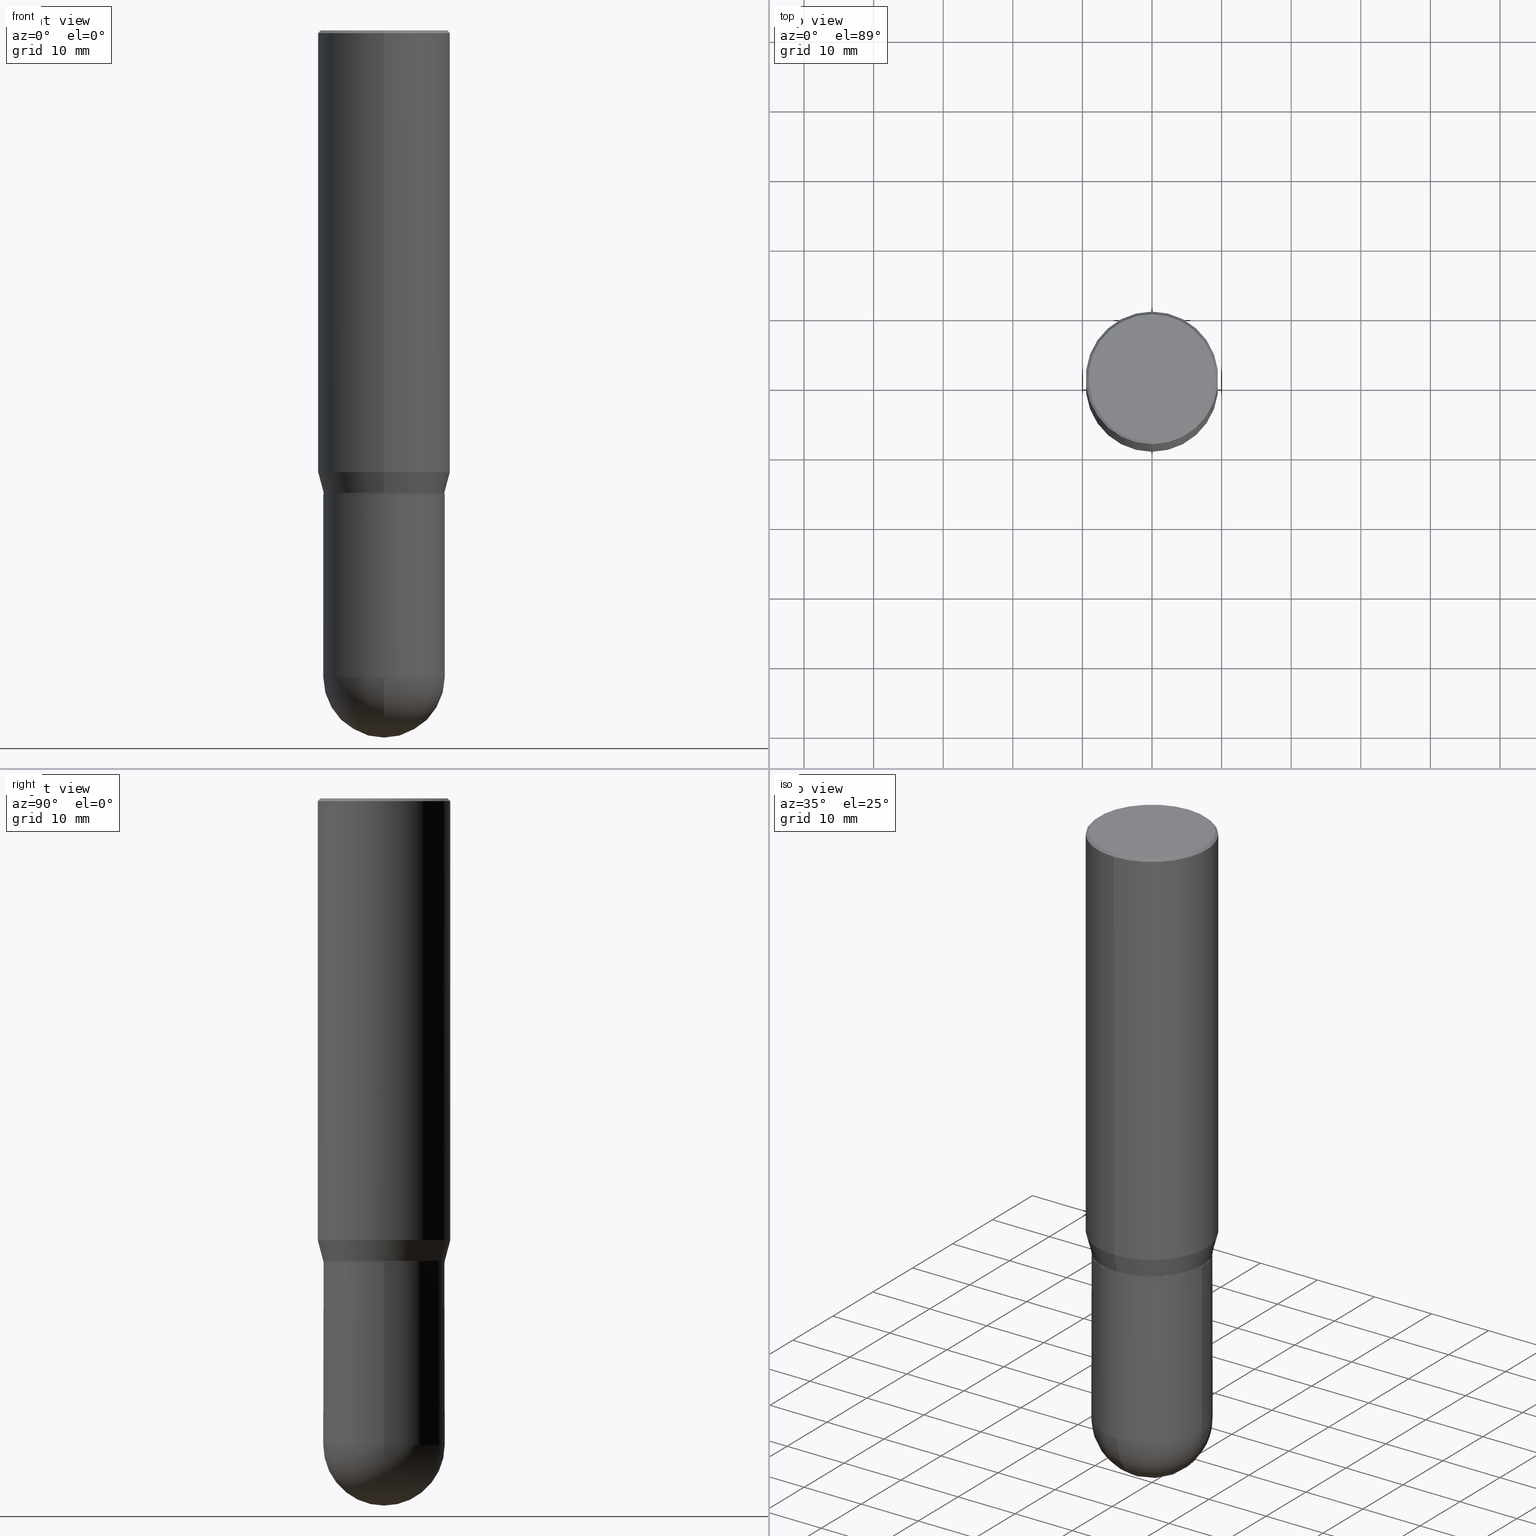
[diagram: canonical four-view strip — front | top / right | iso, engineering-drawing reading convention]
A machine part, canonical four-view strip (front | top / right | iso — engineering-drawing reading convention). The complete STEP part file that produces these views, byte-faithful:
ISO-10303-21;
HEADER;
FILE_DESCRIPTION (( 'STEP AP203' ),
    '1' );
FILE_NAME ('39170.STEP',
    '2024-03-08T12:46:50',
    ( '' ),
    ( '' ),
    'SwSTEP 2.0',
    'SolidWorks 2023',
    '' );
FILE_SCHEMA (( 'CONFIG_CONTROL_DESIGN' ));
ENDSEC;

DATA;
#1 = APPROVAL_ROLE ( '' ) ;
#2 = DIRECTION ( 'NONE',  ( -2.447249651675141421E-29, 3.488931066742028009E-15, 1.000000000000000000 ) ) ;
#3 = VERTEX_POINT ( 'NONE', #365 ) ;
#4 = MECHANICAL_CONTEXT ( 'NONE', #94, 'mechanical' ) ;
#5 = CONICAL_SURFACE ( 'NONE', #431, 0.3437500000000002776, 0.2617993877991510177 ) ;
#6 = CYLINDRICAL_SURFACE ( 'NONE', #101, 0.3437500000000001110 ) ;
#7 = ORIENTED_EDGE ( 'NONE', *, *, #454, .T. ) ;
#8 = DIRECTION ( 'NONE',  ( 0.000000000000000000, 0.000000000000000000, 1.000000000000000000 ) ) ;
#9 = ORIENTED_EDGE ( 'NONE', *, *, #18, .T. ) ;
#10 = COORDINATED_UNIVERSAL_TIME_OFFSET ( 5, 0, .BEHIND. ) ;
#11 = DIRECTION ( 'NONE',  ( 2.447249651675140861E-29, -3.488931066742028403E-15, -1.000000000000000000 ) ) ;
#12 = DATE_AND_TIME ( #370, #281 ) ;
#13 = DIRECTION ( 'NONE',  ( -6.982962677686265133E-15, -1.000000000000000000, 3.183508222769715349E-15 ) ) ;
#14 = CC_DESIGN_APPROVAL ( #89, ( #285 ) ) ;
#15 = CALENDAR_DATE ( 2024, 8, 3 ) ;
#16 = EDGE_LOOP ( 'NONE', ( #242, #479, #269, #35 ) ) ;
#17 = SPHERICAL_SURFACE ( 'NONE', #201, 0.3437500000000002776 ) ;
#18 = EDGE_CURVE ( 'NONE', #317, #395, #463, .T. ) ;
#19 = DIRECTION ( 'NONE',  ( 1.000000000000000000, -6.982962677686266711E-15, 0.000000000000000000 ) ) ;
#20 = CIRCLE ( 'NONE', #46, 0.3437500000000001110 ) ;
#21 = APPROVAL ( #90, 'UNSPECIFIED' ) ;
#22 = CIRCLE ( 'NONE', #149, 0.3437500000000002776 ) ;
#23 = CARTESIAN_POINT ( 'NONE',  ( 6.422806710821410064E-29, -9.156699584664454018E-15, -2.624500000000000277 ) ) ;
#24 = CARTESIAN_POINT ( 'NONE',  ( 2.553512956637922757E-15, 0.3437499999999911182, -2.615000000000001545 ) ) ;
#25 = ORIENTED_EDGE ( 'NONE', *, *, #427, .T. ) ;
#26 = CARTESIAN_POINT ( 'NONE',  ( 0.3437500000000001665, -1.336582700025891149E-14, -3.656250000000000000 ) ) ;
#27 = ADVANCED_FACE ( 'NONE', ( #227 ), #420, .T. ) ;
#28 = CIRCLE ( 'NONE', #423, 0.3437500000000001665 ) ;
#29 = MANIFOLD_SOLID_BREP ( 'Body-Move/Copy2[2]', #77 ) ;
#30 = FACE_OUTER_BOUND ( 'NONE', #208, .T. ) ;
#31 = CARTESIAN_POINT ( 'NONE',  ( 6.399557839130496285E-29, -9.123554739530404168E-15, -2.615000000000000213 ) ) ;
#32 = LINE ( 'NONE', #112, #267 ) ;
#33 = MANIFOLD_SOLID_BREP ( 'Body-Move/Copy2[1]', #136 ) ;
#34 = CARTESIAN_POINT ( 'NONE',  ( 0.000000000000000000, 0.000000000000000000, 0.000000000000000000 ) ) ;
#35 = ORIENTED_EDGE ( 'NONE', *, *, #347, .F. ) ;
#36 = CC_DESIGN_DATE_AND_TIME_ASSIGNMENT ( #85, #293, ( #183 ) ) ;
#37 = DIRECTION ( 'NONE',  ( -2.447249651675140861E-29, 3.488931066742028403E-15, 1.000000000000000000 ) ) ;
#38 = VERTEX_POINT ( 'NONE', #349 ) ;
#39 = CARTESIAN_POINT ( 'NONE',  ( -2.521233014181036950E-15, -0.3599999999999999867, 9.089902455763289193E-16 ) ) ;
#40 = ORIENTED_EDGE ( 'NONE', *, *, #336, .F. ) ;
#41 = DIRECTION ( 'NONE',  ( 1.000000000000000000, -6.982962677686265922E-15, 0.000000000000000000 ) ) ;
#42 = EDGE_CURVE ( 'NONE', #350, #55, #475, .T. ) ;
#43 = FACE_OUTER_BOUND ( 'NONE', #401, .T. ) ;
#44 = ORIENTED_EDGE ( 'NONE', *, *, #341, .T. ) ;
#45 = CARTESIAN_POINT ( 'NONE',  ( 6.399557839130496285E-29, -9.123554739530404168E-15, -2.615000000000000213 ) ) ;
#46 = AXIS2_PLACEMENT_3D ( 'NONE', #92, #254, #19 ) ;
#47 = EDGE_LOOP ( 'NONE', ( #353, #166 ) ) ;
#48 = SPHERICAL_SURFACE ( 'NONE', #343, 0.3437500000000002776 ) ;
#49 = ORIENTED_EDGE ( 'NONE', *, *, #375, .F. ) ;
#50 = DIRECTION ( 'NONE',  ( -2.447249651675141421E-29, 3.488931066742028009E-15, 1.000000000000000000 ) ) ;
#51 = DIRECTION ( 'NONE',  ( -2.447249651675141421E-29, 3.488931066742028009E-15, 1.000000000000000000 ) ) ;
#52 = AXIS2_PLACEMENT_3D ( 'NONE', #316, #397, #465 ) ;
#53 = LOCAL_TIME ( 7, 46, 50.00000000000000000, #333 ) ;
#54 = DIRECTION ( 'NONE',  ( -2.447249651675141421E-29, 3.488931066742028009E-15, 1.000000000000000000 ) ) ;
#55 = VERTEX_POINT ( 'NONE', #275 ) ;
#56 = DIRECTION ( 'NONE',  ( -1.000000000000000000, 6.982962677686265922E-15, -4.883557194083112340E-29 ) ) ;
#57 = CC_DESIGN_PERSON_AND_ORGANIZATION_ASSIGNMENT ( #438, #351, ( #419 ) ) ;
#58 = DIRECTION ( 'NONE',  ( -2.447249651675141421E-29, 3.488931066742028009E-15, 1.000000000000000000 ) ) ;
#59 = ADVANCED_FACE ( 'NONE', ( #114 ), #384, .F. ) ;
#60 = PRODUCT_DEFINITION_FORMATION_WITH_SPECIFIED_SOURCE ( 'ANY', '', #419, .NOT_KNOWN. ) ;
#61 = DIRECTION ( 'NONE',  ( -6.982962677686265922E-15, -1.000000000000000000, 3.178877665354776508E-15 ) ) ;
#62 = DIRECTION ( 'NONE',  ( -2.447249651675141421E-29, 3.488931066742028403E-15, 1.000000000000000000 ) ) ;
#63 = VERTEX_POINT ( 'NONE', #352 ) ;
#64 = DIRECTION ( 'NONE',  ( -2.447249651675141421E-29, 3.488931066742028009E-15, 1.000000000000000000 ) ) ;
#65 = CIRCLE ( 'NONE', #290, 0.3432500000000001661 ) ;
#66 = CARTESIAN_POINT ( 'NONE',  ( 8.941245322614405682E-29, -1.276572864514525169E-14, -3.656250000000000000 ) ) ;
#67 = EDGE_CURVE ( 'NONE', #391, #317, #32, .T. ) ;
#68 = CARTESIAN_POINT ( 'NONE',  ( -2.396901939115747671E-15, -0.3432500000000093254, -2.624999999999999556 ) ) ;
#69 = ORIENTED_EDGE ( 'NONE', *, *, #460, .F. ) ;
#70 = APPLICATION_PROTOCOL_DEFINITION ( 'international standard', 'config_control_design', 1994, #94 ) ;
#71 = EDGE_CURVE ( 'NONE', #282, #123, #301, .T. ) ;
#72 = DIRECTION ( 'NONE',  ( -2.447249651675141421E-29, 3.488931066742028403E-15, 1.000000000000000000 ) ) ;
#73 = VERTEX_POINT ( 'NONE', #68 ) ;
#74 = DATE_AND_TIME ( #113, #211 ) ;
#75 = DIRECTION ( 'NONE',  ( 1.000000000000000000, -6.982962677686265922E-15, 0.000000000000000000 ) ) ;
#76 = ORIENTED_EDGE ( 'NONE', *, *, #439, .T. ) ;
#77 = CLOSED_SHELL ( 'NONE', ( #117, #274, #262, #100, #403, #193, #415, #304, #248, #59, #27, #111 ) ) ;
#78 = AXIS2_PLACEMENT_3D ( 'NONE', #146, #64, #374 ) ;
#79 = CARTESIAN_POINT ( 'NONE',  ( -2.572686749164323547E-15, -0.3750000000000001110, -0.01499999999999903667 ) ) ;
#80 = ORIENTED_EDGE ( 'NONE', *, *, #392, .F. ) ;
#81 = DIRECTION ( 'NONE',  ( -6.982962677686265133E-15, -1.000000000000000000, 3.183508222769715349E-15 ) ) ;
#82 = ORIENTED_EDGE ( 'NONE', *, *, #223, .F. ) ;
#83 = DATE_AND_TIME ( #124, #471 ) ;
#84 = VERTEX_POINT ( 'NONE', #39 ) ;
#85 = DATE_AND_TIME ( #15, #53 ) ;
#86 = CIRCLE ( 'NONE', #202, 0.3750000000000000555 ) ;
#87 = ORIENTED_EDGE ( 'NONE', *, *, #454, .F. ) ;
#88 = CARTESIAN_POINT ( 'NONE',  ( 2.618611004132350411E-15, 0.3749999999999999445, -0.01500000000000165437 ) ) ;
#89 = APPROVAL ( #322, 'UNSPECIFIED' ) ;
#90 = APPROVAL_STATUS ( 'not_yet_approved' ) ;
#91 = DIRECTION ( 'NONE',  ( -2.445468806185136597E-29, 3.491481338843145583E-15, 1.000000000000000000 ) ) ;
#92 = CARTESIAN_POINT ( 'NONE',  ( 6.419355616235984688E-29, -9.165138514463258190E-15, -2.625000000000000444 ) ) ;
#93 = AXIS2_PLACEMENT_3D ( 'NONE', #414, #300, #411 ) ;
#94 = APPLICATION_CONTEXT ( 'configuration controlled 3d designs of mechanical parts and assemblies' ) ;
#95 = ORIENTED_EDGE ( 'NONE', *, *, #135, .T. ) ;
#96 = DIRECTION ( 'NONE',  ( -2.447249651675141421E-29, 3.488931066742028403E-15, 1.000000000000000000 ) ) ;
#97 = CARTESIAN_POINT ( 'NONE',  ( 2.566238784049702937E-15, 0.3599999999999999867, -1.603040122477931310E-15 ) ) ;
#98 = CARTESIAN_POINT ( 'NONE',  ( 2.664535259100437228E-15, 0.3749999999999998890, -0.01500000000000165437 ) ) ;
#99 = AXIS2_PLACEMENT_3D ( 'NONE', #405, #372, #492 ) ;
#100 = ADVANCED_FACE ( 'NONE', ( #358 ), #195, .T. ) ;
#101 = AXIS2_PLACEMENT_3D ( 'NONE', #319, #433, #323 ) ;
#102 = CIRCLE ( 'NONE', #142, 0.3437500000000001665 ) ;
#103 = CARTESIAN_POINT ( 'NONE',  ( 0.000000000000000000, 0.000000000000000000, 0.000000000000000000 ) ) ;
#104 = EDGE_LOOP ( 'NONE', ( #127, #44, #25, #371 ) ) ;
#105 = PERSON ( 'UNSPECIFIED', 'UNSPECIFIED', 'UNSPECIFIED', ('UNSPECIFIED'), ('UNSPECIFIED'), ('UNSPECIFIED') ) ;
#106 = CARTESIAN_POINT ( 'NONE',  ( -2.396901939115747671E-15, -0.3432500000000093254, -2.624999999999999556 ) ) ;
#107 = DIRECTION ( 'NONE',  ( -6.982962677686265922E-15, -1.000000000000000000, 3.488797541908735597E-15 ) ) ;
#108 = EDGE_LOOP ( 'NONE', ( #469, #153, #175, #87 ) ) ;
#109 = APPROVAL_PERSON_ORGANIZATION ( #252, #21, #247 ) ;
#110 = CARTESIAN_POINT ( 'NONE',  ( 0.000000000000000000, 0.000000000000000000, 0.000000000000000000 ) ) ;
#111 = ADVANCED_FACE ( 'NONE', ( #199 ), #394, .T. ) ;
#112 = CARTESIAN_POINT ( 'NONE',  ( 2.438937940496608571E-15, 0.3432499999999910067, -2.625000000000001776 ) ) ;
#113 = CALENDAR_DATE ( 2024, 8, 3 ) ;
#114 = FACE_OUTER_BOUND ( 'NONE', #47, .T. ) ;
#115 = ORIENTED_EDGE ( 'NONE', *, *, #298, .T. ) ;
#116 = DIRECTION ( 'NONE',  ( -6.982962677686265922E-15, -1.000000000000000000, 3.488931066742028403E-15 ) ) ;
#117 = ADVANCED_FACE ( 'NONE', ( #190 ), #158, .T. ) ;
#118 = ORIENTED_EDGE ( 'NONE', *, *, #347, .T. ) ;
#119 = AXIS2_PLACEMENT_3D ( 'NONE', #133, #138, #452 ) ;
#120 = CC_DESIGN_APPROVAL ( #21, ( #183 ) ) ;
#121 = PERSON_AND_ORGANIZATION ( #105, #368 ) ;
#122 = CARTESIAN_POINT ( 'NONE',  ( 6.114143462916222679E-29, -8.716652614368324829E-15, -2.498373412263474425 ) ) ;
#123 = VERTEX_POINT ( 'NONE', #147 ) ;
#124 = CALENDAR_DATE ( 2024, 8, 3 ) ;
#125 = CARTESIAN_POINT ( 'NONE',  ( 6.424030335647246511E-29, -9.158444050197824066E-15, -2.625000000000000444 ) ) ;
#126 = ORIENTED_EDGE ( 'NONE', *, *, #482, .T. ) ;
#127 = ORIENTED_EDGE ( 'NONE', *, *, #67, .F. ) ;
#128 = AXIS2_PLACEMENT_3D ( 'NONE', #448, #51, #402 ) ;
#129 = CC_DESIGN_PERSON_AND_ORGANIZATION_ASSIGNMENT ( #478, #447, ( #183 ) ) ;
#130 = DIRECTION ( 'NONE',  ( -2.447249651675141421E-29, 3.488931066742028009E-15, 1.000000000000000000 ) ) ;
#131 = CIRCLE ( 'NONE', #225, 0.3437500000000003331 ) ;
#132 = SECURITY_CLASSIFICATION_LEVEL ( 'unclassified' ) ;
#133 = CARTESIAN_POINT ( 'NONE',  ( 8.941245322614405682E-29, -1.276572864514525169E-14, -3.656250000000000000 ) ) ;
#134 = CARTESIAN_POINT ( 'NONE',  ( 6.424030335647246511E-29, -9.158444050197824066E-15, -2.625000000000000444 ) ) ;
#135 = EDGE_CURVE ( 'NONE', #282, #314, #373, .T. ) ;
#136 = CLOSED_SHELL ( 'NONE', ( #422, #219, #171, #259, #167 ) ) ;
#137 = AXIS2_PLACEMENT_3D ( 'NONE', #461, #185, #107 ) ;
#138 = DIRECTION ( 'NONE',  ( -2.445468806185136597E-29, 3.491481338843145583E-15, 1.000000000000000000 ) ) ;
#139 = CARTESIAN_POINT ( 'NONE',  ( -0.3437500000000001110, -8.522942925628910551E-15, -2.625000000000000444 ) ) ;
#140 = CARTESIAN_POINT ( 'NONE',  ( 3.670874477512797068E-31, -5.233396600113162734E-17, -0.01500000000000034639 ) ) ;
#141 = CC_DESIGN_PERSON_AND_ORGANIZATION_ASSIGNMENT ( #154, #315, ( #60 ) ) ;
#142 = AXIS2_PLACEMENT_3D ( 'NONE', #270, #189, #41 ) ;
#143 = DIRECTION ( 'NONE',  ( -2.447249651675141421E-29, 3.488931066742028009E-15, 1.000000000000000000 ) ) ;
#144 = LINE ( 'NONE', #462, #361 ) ;
#145 = EDGE_CURVE ( 'NONE', #3, #38, #496, .T. ) ;
#146 = CARTESIAN_POINT ( 'NONE',  ( 8.492566597463105327E-45, -1.210746088695240353E-30, -3.470249384508011462E-16 ) ) ;
#147 = CARTESIAN_POINT ( 'NONE',  ( 2.400393420454744901E-15, 0.3437499999999875100, -3.656250000000001332 ) ) ;
#148 = ORIENTED_EDGE ( 'NONE', *, *, #493, .F. ) ;
#149 = AXIS2_PLACEMENT_3D ( 'NONE', #260, #181, #61 ) ;
#150 = COORDINATED_UNIVERSAL_TIME_OFFSET ( 5, 0, .BEHIND. ) ;
#151 = EDGE_CURVE ( 'NONE', #314, #385, #261, .T. ) ;
#152 = CARTESIAN_POINT ( 'NONE',  ( 0.000000000000000000, 0.000000000000000000, 0.000000000000000000 ) ) ;
#153 = ORIENTED_EDGE ( 'NONE', *, *, #216, .T. ) ;
#154 = PERSON_AND_ORGANIZATION ( #105, #368 ) ;
#155 = CARTESIAN_POINT ( 'NONE',  ( 0.000000000000000000, 0.000000000000000000, 0.000000000000000000 ) ) ;
#156 = EDGE_LOOP ( 'NONE', ( #359, #76, #214, #69 ) ) ;
#157 = COORDINATED_UNIVERSAL_TIME_OFFSET ( 5, 0, .BEHIND. ) ;
#158 = CYLINDRICAL_SURFACE ( 'NONE', #182, 0.3437500000000002776 ) ;
#159 = EDGE_LOOP ( 'NONE', ( #473, #191, #49, #512 ) ) ;
#160 = AXIS2_PLACEMENT_3D ( 'NONE', #122, #468, #360 ) ;
#161 = AXIS2_PLACEMENT_3D ( 'NONE', #308, #379, #376 ) ;
#162 = CALENDAR_DATE ( 2024, 8, 3 ) ;
#163 = DIRECTION ( 'NONE',  ( 5.024295867788060812E-15, 0.7071067811865499042, 0.7071067811865450192 ) ) ;
#164 = EDGE_LOOP ( 'NONE', ( #430, #95, #326, #40 ) ) ;
#165 = PERSON_AND_ORGANIZATION_ROLE ( 'creator' ) ;
#166 = ORIENTED_EDGE ( 'NONE', *, *, #341, .F. ) ;
#167 = ADVANCED_FACE ( 'NONE', ( #43 ), #6, .T. ) ;
#168 = CARTESIAN_POINT ( 'NONE',  ( -0.3437500000000001665, -8.522942925628910551E-15, -3.656250000000000000 ) ) ;
#169 = AXIS2_PLACEMENT_3D ( 'NONE', #103, #344, #348 ) ;
#170 = DIRECTION ( 'NONE',  ( -6.982962677686265133E-15, -1.000000000000000000, 3.183508222769715349E-15 ) ) ;
#171 = ADVANCED_FACE ( 'NONE', ( #503 ), #283, .F. ) ;
#172 = AXIS2_PLACEMENT_3D ( 'NONE', #302, #180, #263 ) ;
#173 = DIRECTION ( 'NONE',  ( -6.982962677686265922E-15, -1.000000000000000000, 3.178877665354776508E-15 ) ) ;
#174 = PRODUCT_RELATED_PRODUCT_CATEGORY ( 'detail', '', ( #419 ) ) ;
#175 = ORIENTED_EDGE ( 'NONE', *, *, #446, .T. ) ;
#176 = LINE ( 'NONE', #444, #309 ) ;
#177 = DIRECTION ( 'NONE',  ( -1.000000000000000000, 6.982962677686265922E-15, -4.883557194083112340E-29 ) ) ;
#178 = CARTESIAN_POINT ( 'NONE',  ( -2.400393420454592651E-15, -0.3437500000000096034, -2.624499999999999389 ) ) ;
#179 = EDGE_CURVE ( 'NONE', #84, #249, #389, .T. ) ;
#180 = DIRECTION ( 'NONE',  ( -2.445468806185136597E-29, 3.491481338843145583E-15, 1.000000000000000000 ) ) ;
#181 = DIRECTION ( 'NONE',  ( -2.447249651675141421E-29, 3.488931066742028009E-15, 1.000000000000000000 ) ) ;
#182 = AXIS2_PLACEMENT_3D ( 'NONE', #152, #381, #241 ) ;
#183 = SECURITY_CLASSIFICATION ( '', '', #132 ) ;
#184 = ORIENTED_EDGE ( 'NONE', *, *, #151, .F. ) ;
#185 = DIRECTION ( 'NONE',  ( -2.447249651675141421E-29, 3.488931066742028009E-15, 1.000000000000000000 ) ) ;
#186 = CC_DESIGN_PERSON_AND_ORGANIZATION_ASSIGNMENT ( #121, #165, ( #285 ) ) ;
#187 = CARTESIAN_POINT ( 'NONE',  ( -2.618611004132350016E-15, -0.3750000000000000555, 1.308349150028260553E-15 ) ) ;
#188 = DIRECTION ( 'NONE',  ( -2.447249651675141421E-29, 3.488931066742028009E-15, 1.000000000000000000 ) ) ;
#189 = DIRECTION ( 'NONE',  ( -2.445468806185136597E-29, 3.491481338843145583E-15, 1.000000000000000000 ) ) ;
#190 = FACE_OUTER_BOUND ( 'NONE', #362, .T. ) ;
#191 = ORIENTED_EDGE ( 'NONE', *, *, #237, .T. ) ;
#192 = VECTOR ( 'NONE', #494, 39.37007874015748143 ) ;
#193 = ADVANCED_FACE ( 'NONE', ( #204 ), #5, .T. ) ;
#194 = APPROVAL_ROLE ( '' ) ;
#195 = CYLINDRICAL_SURFACE ( 'NONE', #505, 0.3750000000000000555 ) ;
#196 = ORIENTED_EDGE ( 'NONE', *, *, #392, .T. ) ;
#197 = CARTESIAN_POINT ( 'NONE',  ( 2.442490654175345572E-15, 0.3437500000000002776, -1.199320054192572979E-15 ) ) ;
#198 = ORIENTED_EDGE ( 'NONE', *, *, #491, .T. ) ;
#199 = FACE_OUTER_BOUND ( 'NONE', #16, .T. ) ;
#200 = VERTEX_POINT ( 'NONE', #168 ) ;
#201 = AXIS2_PLACEMENT_3D ( 'NONE', #332, #56, #481 ) ;
#202 = AXIS2_PLACEMENT_3D ( 'NONE', #140, #457, #221 ) ;
#203 = PERSON_AND_ORGANIZATION ( #105, #368 ) ;
#204 = FACE_OUTER_BOUND ( 'NONE', #342, .T. ) ;
#205 = EDGE_CURVE ( 'NONE', #350, #317, #209, .T. ) ;
#206 = ORIENTED_EDGE ( 'NONE', *, *, #205, .T. ) ;
#207 = FACE_OUTER_BOUND ( 'NONE', #356, .T. ) ;
#208 = EDGE_LOOP ( 'NONE', ( #236, #196, #82, #487, #440 ) ) ;
#209 = CIRCLE ( 'NONE', #280, 0.3437500000000003331 ) ;
#210 = EDGE_CURVE ( 'NONE', #73, #391, #65, .T. ) ;
#211 = LOCAL_TIME ( 7, 46, 50.00000000000000000, #464 ) ;
#212 = FACE_OUTER_BOUND ( 'NONE', #434, .T. ) ;
#213 = CARTESIAN_POINT ( 'NONE',  ( 6.399557839130496285E-29, -9.123554739530404168E-15, -2.615000000000000213 ) ) ;
#214 = ORIENTED_EDGE ( 'NONE', *, *, #145, .F. ) ;
#215 = LINE ( 'NONE', #88, #378 ) ;
#216 = EDGE_CURVE ( 'NONE', #38, #3, #388, .T. ) ;
#217 = LINE ( 'NONE', #106, #235 ) ;
#218 =( GEOMETRIC_REPRESENTATION_CONTEXT ( 3 ) GLOBAL_UNCERTAINTY_ASSIGNED_CONTEXT ( ( #480 ) ) GLOBAL_UNIT_ASSIGNED_CONTEXT ( ( #243, #396, #318 ) ) REPRESENTATION_CONTEXT ( 'NONE', 'WORKASPACE' ) );
#219 = ADVANCED_FACE ( 'NONE', ( #335 ), #17, .T. ) ;
#220 = DIRECTION ( 'NONE',  ( -6.982962677686265922E-15, -1.000000000000000000, 3.178877665354776113E-15 ) ) ;
#221 = DIRECTION ( 'NONE',  ( -6.982962677686265922E-15, -1.000000000000000000, 3.488797541908735597E-15 ) ) ;
#222 = DIRECTION ( 'NONE',  ( -2.447249651675141421E-29, 3.488931066742028009E-15, 1.000000000000000000 ) ) ;
#223 = EDGE_CURVE ( 'NONE', #63, #311, #20, .T. ) ;
#224 = AXIS2_PLACEMENT_3D ( 'NONE', #34, #2, #271 ) ;
#225 = AXIS2_PLACEMENT_3D ( 'NONE', #23, #222, #220 ) ;
#226 = CARTESIAN_POINT ( 'NONE',  ( 6.424030335647246511E-29, -9.158444050197824066E-15, -2.625000000000000444 ) ) ;
#227 = FACE_OUTER_BOUND ( 'NONE', #104, .T. ) ;
#228 = ORIENTED_EDGE ( 'NONE', *, *, #375, .T. ) ;
#229 = PERSON_AND_ORGANIZATION ( #105, #368 ) ;
#230 = CARTESIAN_POINT ( 'NONE',  ( -2.400393420454655759E-15, -0.3437500000000002776, 1.199320054192572979E-15 ) ) ;
#231 = ORIENTED_EDGE ( 'NONE', *, *, #369, .F. ) ;
#232 = APPROVAL_DATE_TIME ( #74, #312 ) ;
#233 = DIRECTION ( 'NONE',  ( -1.000000000000000000, 6.982962677686265922E-15, -4.876176775795935793E-29 ) ) ;
#234 = CONICAL_SURFACE ( 'NONE', #407, 0.3432500000000001661, 0.7853981633974482790 ) ;
#235 = VECTOR ( 'NONE', #307, 39.37007874015748854 ) ;
#236 = ORIENTED_EDGE ( 'NONE', *, *, #336, .T. ) ;
#237 = EDGE_CURVE ( 'NONE', #38, #321, #176, .T. ) ;
#238 = DIRECTION ( 'NONE',  ( -1.807323732225335267E-15, -0.2588190451025189631, 0.9659258262890687563 ) ) ;
#239 = DIRECTION ( 'NONE',  ( -2.447249651675141421E-29, 3.488931066742028009E-15, 1.000000000000000000 ) ) ;
#240 = ORIENTED_EDGE ( 'NONE', *, *, #439, .F. ) ;
#241 = DIRECTION ( 'NONE',  ( -6.982962677686265922E-15, -1.000000000000000000, 3.488931066742027615E-15 ) ) ;
#242 = ORIENTED_EDGE ( 'NONE', *, *, #18, .F. ) ;
#243 =( CONVERSION_BASED_UNIT ( 'INCH', #393 ) LENGTH_UNIT ( ) NAMED_UNIT ( #398 ) );
#244 = EDGE_CURVE ( 'NONE', #272, #321, #215, .T. ) ;
#245 = ORIENTED_EDGE ( 'NONE', *, *, #205, .F. ) ;
#246 = VECTOR ( 'NONE', #436, 39.37007874015748143 ) ;
#247 = APPROVAL_ROLE ( '' ) ;
#248 = ADVANCED_FACE ( 'NONE', ( #488 ), #451, .F. ) ;
#249 = VERTEX_POINT ( 'NONE', #256 ) ;
#250 = CARTESIAN_POINT ( 'NONE',  ( 2.513866563967055464E-15, 0.3599999999999999867, -1.429527653252530713E-15 ) ) ;
#251 = CARTESIAN_POINT ( 'NONE',  ( 6.424030335647246511E-29, -9.158444050197824066E-15, -2.625000000000000444 ) ) ;
#252 = PERSON_AND_ORGANIZATION ( #105, #368 ) ;
#253 = CIRCLE ( 'NONE', #390, 0.3432500000000001661 ) ;
#254 = DIRECTION ( 'NONE',  ( -2.445468806185136597E-29, 3.491481338843145583E-15, 1.000000000000000000 ) ) ;
#255 = ORIENTED_EDGE ( 'NONE', *, *, #427, .F. ) ;
#256 = CARTESIAN_POINT ( 'NONE',  ( -2.618611004132349622E-15, -0.3750000000000001110, -0.01499999999999903667 ) ) ;
#257 = PRODUCT_DEFINITION_SHAPE ( 'NONE', 'NONE',  #285 ) ;
#258 = FACE_OUTER_BOUND ( 'NONE', #156, .T. ) ;
#259 = ADVANCED_FACE ( 'NONE', ( #212 ), #48, .T. ) ;
#260 = CARTESIAN_POINT ( 'NONE',  ( 6.399557839130496285E-29, -9.123554739530404168E-15, -2.615000000000000213 ) ) ;
#261 = CIRCLE ( 'NONE', #449, 0.3437500000000001665 ) ;
#262 = ADVANCED_FACE ( 'NONE', ( #207 ), #328, .T. ) ;
#263 = DIRECTION ( 'NONE',  ( 1.000000000000000000, -6.982962677686266711E-15, 4.876176775795935793E-29 ) ) ;
#264 = EDGE_CURVE ( 'NONE', #385, #123, #483, .T. ) ;
#265 = CARTESIAN_POINT ( 'NONE',  ( -2.442490654175256037E-15, -0.3437500000000129896, -3.656249999999999112 ) ) ;
#266 = LINE ( 'NONE', #187, #329 ) ;
#267 = VECTOR ( 'NONE', #163, 39.37007874015748854 ) ;
#268 = APPROVAL_PERSON_ORGANIZATION ( #203, #89, #1 ) ;
#269 = ORIENTED_EDGE ( 'NONE', *, *, #42, .T. ) ;
#270 = CARTESIAN_POINT ( 'NONE',  ( 8.941245322614405682E-29, -1.276572864514525169E-14, -3.656250000000000000 ) ) ;
#271 = DIRECTION ( 'NONE',  ( -6.982962677686265922E-15, -1.000000000000000000, 3.488931066742027615E-15 ) ) ;
#272 = VERTEX_POINT ( 'NONE', #97 ) ;
#273 = DIRECTION ( 'NONE',  ( -2.445468806185136877E-29, 3.491481338843145188E-15, 1.000000000000000000 ) ) ;
#274 = ADVANCED_FACE ( 'NONE', ( #364 ), #234, .T. ) ;
#275 = CARTESIAN_POINT ( 'NONE',  ( -2.400393420454591862E-15, -0.3437500000000094369, -2.614999999999999325 ) ) ;
#276 = ORIENTED_EDGE ( 'NONE', *, *, #42, .F. ) ;
#277 = CARTESIAN_POINT ( 'NONE',  ( 0.3437500000000001110, -2.400393420454654971E-15, 1.676185766679853419E-29 ) ) ;
#278 = DESIGN_CONTEXT ( 'detailed design', #500, 'design' ) ;
#279 = DIRECTION ( 'NONE',  ( -2.445468806185136597E-29, 3.491481338843145583E-15, 1.000000000000000000 ) ) ;
#280 = AXIS2_PLACEMENT_3D ( 'NONE', #297, #130, #291 ) ;
#281 = LOCAL_TIME ( 7, 46, 50.00000000000000000, #10 ) ;
#282 = VERTEX_POINT ( 'NONE', #292 ) ;
#283 = PLANE ( 'NONE',  #387 ) ;
#284 = ORIENTED_EDGE ( 'NONE', *, *, #179, .T. ) ;
#285 = PRODUCT_DEFINITION ( 'UNKNOWN', '', #60, #278 ) ;
#286 = DATE_AND_TIME ( #162, #338 ) ;
#287 = CARTESIAN_POINT ( 'NONE',  ( 8.997365610341803547E-29, -1.268536119895120754E-14, -3.656250000000000000 ) ) ;
#288 = ORIENTED_EDGE ( 'NONE', *, *, #357, .F. ) ;
#289 = ORIENTED_EDGE ( 'NONE', *, *, #71, .T. ) ;
#290 = AXIS2_PLACEMENT_3D ( 'NONE', #134, #54, #170 ) ;
#291 = DIRECTION ( 'NONE',  ( -6.982962677686265922E-15, -1.000000000000000000, 3.178877665354776113E-15 ) ) ;
#292 = CARTESIAN_POINT ( 'NONE',  ( 9.852693683063216430E-29, -1.386450929231819505E-14, -4.000000000000000888 ) ) ;
#293 = DATE_TIME_ROLE ( 'classification_date' ) ;
#294 = AXIS2_PLACEMENT_3D ( 'NONE', #125, #37, #116 ) ;
#295 = VECTOR ( 'NONE', #273, 39.37007874015748143 ) ;
#296 = EDGE_LOOP ( 'NONE', ( #305, #288, #363, #7 ) ) ;
#297 = CARTESIAN_POINT ( 'NONE',  ( 6.422806710821410064E-29, -9.156699584664454018E-15, -2.624500000000000277 ) ) ;
#298 = EDGE_CURVE ( 'NONE', #311, #63, #455, .T. ) ;
#299 = CARTESIAN_POINT ( 'NONE',  ( 8.997365610341803547E-29, -1.268536119895120754E-14, -3.656250000000000000 ) ) ;
#300 = DIRECTION ( 'NONE',  ( 2.447249651675141421E-29, -3.488931066742028009E-15, -1.000000000000000000 ) ) ;
#301 = CIRCLE ( 'NONE', #489, 0.3437500000000002776 ) ;
#302 = CARTESIAN_POINT ( 'NONE',  ( 0.000000000000000000, 0.000000000000000000, 0.000000000000000000 ) ) ;
#303 = CIRCLE ( 'NONE', #161, 0.3599999999999999867 ) ;
#304 = ADVANCED_FACE ( 'NONE', ( #421 ), #320, .T. ) ;
#305 = ORIENTED_EDGE ( 'NONE', *, *, #179, .F. ) ;
#306 = LINE ( 'NONE', #459, #490 ) ;
#307 = DIRECTION ( 'NONE',  ( -4.937700262164547253E-15, -0.7071067811865450192, 0.7071067811865499042 ) ) ;
#308 = CARTESIAN_POINT ( 'NONE',  ( 8.492566597463105327E-45, -1.210746088695240353E-30, -3.470249384508011462E-16 ) ) ;
#309 = VECTOR ( 'NONE', #96, 39.37007874015748143 ) ;
#310 = CARTESIAN_POINT ( 'NONE',  ( 2.400393420454718868E-15, 0.3437499999999909517, -2.625000000000001776 ) ) ;
#311 = VERTEX_POINT ( 'NONE', #139 ) ;
#312 = APPROVAL ( #383, 'UNSPECIFIED' ) ;
#313 = CARTESIAN_POINT ( 'NONE',  ( 8.941245322614405682E-29, -1.276572864514525169E-14, -3.656250000000000000 ) ) ;
#314 = VERTEX_POINT ( 'NONE', #265 ) ;
#315 = PERSON_AND_ORGANIZATION_ROLE ( 'design_supplier' ) ;
#316 = CARTESIAN_POINT ( 'NONE',  ( 8.997365610341803547E-29, -1.268536119895120754E-14, -3.656250000000000000 ) ) ;
#317 = VERTEX_POINT ( 'NONE', #453 ) ;
#318 =( NAMED_UNIT ( * ) SI_UNIT ( $, .STERADIAN. ) SOLID_ANGLE_UNIT ( ) );
#319 = CARTESIAN_POINT ( 'NONE',  ( 0.000000000000000000, 0.000000000000000000, 0.000000000000000000 ) ) ;
#320 = CONICAL_SURFACE ( 'NONE', #93, 0.3750000000000000555, 0.7853981633974498333 ) ;
#321 = VERTEX_POINT ( 'NONE', #98 ) ;
#322 = APPROVAL_STATUS ( 'not_yet_approved' ) ;
#323 = DIRECTION ( 'NONE',  ( 1.000000000000000000, -6.982962677686266711E-15, 4.876176775795935793E-29 ) ) ;
#324 = ORIENTED_EDGE ( 'NONE', *, *, #264, .F. ) ;
#325 = DATE_TIME_ROLE ( 'creation_date' ) ;
#326 = ORIENTED_EDGE ( 'NONE', *, *, #491, .F. ) ;
#327 = DIRECTION ( 'NONE',  ( 6.982962677686265922E-15, 1.000000000000000000, -3.178877665354776508E-15 ) ) ;
#328 = CONICAL_SURFACE ( 'NONE', #99, 0.3750000000000000555, 0.7853981633974498333 ) ;
#329 = VECTOR ( 'NONE', #62, 39.37007874015748143 ) ;
#330 = APPROVAL_DATE_TIME ( #12, #21 ) ;
#331 = CC_DESIGN_DATE_AND_TIME_ASSIGNMENT ( #83, #325, ( #285 ) ) ;
#332 = CARTESIAN_POINT ( 'NONE',  ( 8.997365610341803547E-29, -1.268536119895120754E-14, -3.656250000000000000 ) ) ;
#333 = COORDINATED_UNIVERSAL_TIME_OFFSET ( 5, 0, .BEHIND. ) ;
#334 = ORIENTED_EDGE ( 'NONE', *, *, #357, .T. ) ;
#335 = FACE_OUTER_BOUND ( 'NONE', #164, .T. ) ;
#336 = EDGE_CURVE ( 'NONE', #123, #200, #28, .T. ) ;
#337 = AXIS2_PLACEMENT_3D ( 'NONE', #426, #188, #81 ) ;
#338 = LOCAL_TIME ( 7, 46, 50.00000000000000000, #157 ) ;
#339 = DIRECTION ( 'NONE',  ( -2.445468806185136597E-29, 3.491481338843145583E-15, 1.000000000000000000 ) ) ;
#340 = CYLINDRICAL_SURFACE ( 'NONE', #169, 0.3750000000000000555 ) ;
#341 = EDGE_CURVE ( 'NONE', #391, #73, #253, .T. ) ;
#342 = EDGE_LOOP ( 'NONE', ( #240, #118, #476, #424 ) ) ;
#343 = AXIS2_PLACEMENT_3D ( 'NONE', #299, #177, #327 ) ;
#344 = DIRECTION ( 'NONE',  ( -2.447249651675141421E-29, 3.488931066742028009E-15, 1.000000000000000000 ) ) ;
#345 = AXIS2_PLACEMENT_3D ( 'NONE', #110, #8, #425 ) ;
#346 = DIRECTION ( 'NONE',  ( -2.445468806185136877E-29, 3.491481338843145188E-15, 1.000000000000000000 ) ) ;
#347 = EDGE_CURVE ( 'NONE', #395, #55, #22, .T. ) ;
#348 = DIRECTION ( 'NONE',  ( -6.982962677686265922E-15, -1.000000000000000000, 3.488931066742027615E-15 ) ) ;
#349 = CARTESIAN_POINT ( 'NONE',  ( 2.664535259100436439E-15, 0.3749999999999912847, -2.498373412263475757 ) ) ;
#350 = VERTEX_POINT ( 'NONE', #178 ) ;
#351 = PERSON_AND_ORGANIZATION_ROLE ( 'design_owner' ) ;
#352 = CARTESIAN_POINT ( 'NONE',  ( 0.3437500000000001110, -1.156553193491791316E-14, -2.625000000000000444 ) ) ;
#353 = ORIENTED_EDGE ( 'NONE', *, *, #210, .F. ) ;
#354 = PERSON_AND_ORGANIZATION ( #105, #368 ) ;
#355 = DIRECTION ( 'NONE',  ( 6.982962677686265922E-15, 1.000000000000000000, 0.000000000000000000 ) ) ;
#356 = EDGE_LOOP ( 'NONE', ( #231, #284, #228, #458 ) ) ;
#357 = EDGE_CURVE ( 'NONE', #272, #84, #456, .T. ) ;
#358 = FACE_OUTER_BOUND ( 'NONE', #159, .T. ) ;
#359 = ORIENTED_EDGE ( 'NONE', *, *, #493, .T. ) ;
#360 = DIRECTION ( 'NONE',  ( -6.982962677686265922E-15, -1.000000000000000000, 2.913971193241880372E-15 ) ) ;
#361 = VECTOR ( 'NONE', #346, 39.37007874015748143 ) ;
#362 = EDGE_LOOP ( 'NONE', ( #206, #9, #148, #276 ) ) ;
#363 = ORIENTED_EDGE ( 'NONE', *, *, #244, .T. ) ;
#364 = FACE_OUTER_BOUND ( 'NONE', #497, .T. ) ;
#365 = CARTESIAN_POINT ( 'NONE',  ( -2.618611004132288880E-15, -0.3750000000000087708, -2.498373412263473536 ) ) ;
#366 = EDGE_CURVE ( 'NONE', #317, #350, #131, .T. ) ;
#367 = VECTOR ( 'NONE', #72, 39.37007874015748143 ) ;
#368 = ORGANIZATION ( 'UNSPECIFIED', 'UNSPECIFIED', '' ) ;
#369 = EDGE_CURVE ( 'NONE', #84, #272, #303, .T. ) ;
#370 = CALENDAR_DATE ( 2024, 8, 3 ) ;
#371 = ORIENTED_EDGE ( 'NONE', *, *, #366, .F. ) ;
#372 = DIRECTION ( 'NONE',  ( 2.447249651675141421E-29, -3.488931066742028009E-15, -1.000000000000000000 ) ) ;
#373 = CIRCLE ( 'NONE', #52, 0.3437500000000002776 ) ;
#374 = DIRECTION ( 'NONE',  ( -6.982962677686265133E-15, -1.000000000000000000, 3.488931066742028403E-15 ) ) ;
#375 = EDGE_CURVE ( 'NONE', #249, #321, #450, .T. ) ;
#376 = DIRECTION ( 'NONE',  ( -6.982962677686265133E-15, -1.000000000000000000, 3.488931066742028403E-15 ) ) ;
#377 = FACE_OUTER_BOUND ( 'NONE', #108, .T. ) ;
#378 = VECTOR ( 'NONE', #408, 39.37007874015748854 ) ;
#379 = DIRECTION ( 'NONE',  ( -2.447249651675141421E-29, 3.488931066742028009E-15, 1.000000000000000000 ) ) ;
#380 = DIRECTION ( 'NONE',  ( 1.000000000000000000, -6.982962677686265922E-15, 0.000000000000000000 ) ) ;
#381 = DIRECTION ( 'NONE',  ( -2.447249651675141421E-29, 3.488931066742028009E-15, 1.000000000000000000 ) ) ;
#382 = ORIENTED_EDGE ( 'NONE', *, *, #135, .F. ) ;
#383 = APPROVAL_STATUS ( 'not_yet_approved' ) ;
#384 = PLANE ( 'NONE',  #294 ) ;
#385 = VERTEX_POINT ( 'NONE', #26 ) ;
#386 =( LENGTH_UNIT ( ) NAMED_UNIT ( * ) SI_UNIT ( $, .METRE. ) );
#387 = AXIS2_PLACEMENT_3D ( 'NONE', #310, #472, #233 ) ;
#388 = CIRCLE ( 'NONE', #128, 0.3750000000000000555 ) ;
#389 = LINE ( 'NONE', #79, #246 ) ;
#390 = AXIS2_PLACEMENT_3D ( 'NONE', #226, #143, #418 ) ;
#391 = VERTEX_POINT ( 'NONE', #416 ) ;
#392 = EDGE_CURVE ( 'NONE', #200, #311, #144, .T. ) ;
#393 = LENGTH_MEASURE_WITH_UNIT ( LENGTH_MEASURE( 0.02539999999999999897 ), #386 );
#394 = CYLINDRICAL_SURFACE ( 'NONE', #224, 0.3437500000000002776 ) ;
#395 = VERTEX_POINT ( 'NONE', #24 ) ;
#396 =( NAMED_UNIT ( * ) PLANE_ANGLE_UNIT ( ) SI_UNIT ( $, .RADIAN. ) );
#397 = DIRECTION ( 'NONE',  ( -1.000000000000000000, 7.105427357601001070E-15, -4.926315508542082329E-29 ) ) ;
#398 = DIMENSIONAL_EXPONENTS ( 1.000000000000000000, 0.000000000000000000, 0.000000000000000000, 0.000000000000000000, 0.000000000000000000, 0.000000000000000000, 0.000000000000000000 ) ;
#399 = EDGE_LOOP ( 'NONE', ( #509, #115 ) ) ;
#400 = CC_DESIGN_SECURITY_CLASSIFICATION ( #183, ( #60 ) ) ;
#401 = EDGE_LOOP ( 'NONE', ( #80, #198, #404, #126, #443 ) ) ;
#402 = DIRECTION ( 'NONE',  ( -6.982962677686265922E-15, -1.000000000000000000, 2.913971193241880372E-15 ) ) ;
#403 = ADVANCED_FACE ( 'NONE', ( #258 ), #413, .T. ) ;
#404 = ORIENTED_EDGE ( 'NONE', *, *, #151, .T. ) ;
#405 = CARTESIAN_POINT ( 'NONE',  ( 3.670874477512797068E-31, -5.233396600113162734E-17, -0.01500000000000034639 ) ) ;
#406 = DIRECTION ( 'NONE',  ( 1.000000000000000000, -6.982962677686266711E-15, 0.000000000000000000 ) ) ;
#407 = AXIS2_PLACEMENT_3D ( 'NONE', #251, #50, #13 ) ;
#408 = DIRECTION ( 'NONE',  ( 4.937700262164555142E-15, 0.7071067811865461294, -0.7071067811865487940 ) ) ;
#409 = ORIENTED_EDGE ( 'NONE', *, *, #67, .T. ) ;
#410 = DIRECTION ( 'NONE',  ( 6.982962677686265922E-15, 1.000000000000000000, -3.488931066742028403E-15 ) ) ;
#411 = DIRECTION ( 'NONE',  ( 6.982962677686265922E-15, 1.000000000000000000, -3.488797541908735597E-15 ) ) ;
#412 = AXIS2_PLACEMENT_3D ( 'NONE', #250, #11, #410 ) ;
#413 = CONICAL_SURFACE ( 'NONE', #484, 0.3437500000000002776, 0.2617993877991510177 ) ;
#414 = CARTESIAN_POINT ( 'NONE',  ( 3.670874477512797068E-31, -5.233396600113162734E-17, -0.01500000000000034639 ) ) ;
#415 = ADVANCED_FACE ( 'NONE', ( #377 ), #340, .T. ) ;
#416 = CARTESIAN_POINT ( 'NONE',  ( 2.440714297336009415E-15, 0.3432499999999910067, -2.625000000000001776 ) ) ;
#417 = ADVANCED_BREP_SHAPE_REPRESENTATION ( '39170', ( #33, #29, #345 ), #218 ) ;
#418 = DIRECTION ( 'NONE',  ( -6.982962677686265133E-15, -1.000000000000000000, 3.183508222769715349E-15 ) ) ;
#419 = PRODUCT ( '39170', '39170', '', ( #4 ) ) ;
#420 = CONICAL_SURFACE ( 'NONE', #337, 0.3432500000000001661, 0.7853981633974482790 ) ;
#421 = FACE_OUTER_BOUND ( 'NONE', #296, .T. ) ;
#422 = ADVANCED_FACE ( 'NONE', ( #30 ), #502, .T. ) ;
#423 = AXIS2_PLACEMENT_3D ( 'NONE', #66, #339, #380 ) ;
#424 = ORIENTED_EDGE ( 'NONE', *, *, #216, .F. ) ;
#425 = DIRECTION ( 'NONE',  ( 1.000000000000000000, 0.000000000000000000, 0.000000000000000000 ) ) ;
#426 = CARTESIAN_POINT ( 'NONE',  ( 6.424030335647246511E-29, -9.158444050197824066E-15, -2.625000000000000444 ) ) ;
#427 = EDGE_CURVE ( 'NONE', #73, #350, #217, .T. ) ;
#428 = DIRECTION ( 'NONE',  ( -2.447249651675141421E-29, 3.488931066742028009E-15, 1.000000000000000000 ) ) ;
#429 = DIRECTION ( 'NONE',  ( 1.000000000000000000, -6.982962677686265922E-15, 4.883557194083112340E-29 ) ) ;
#430 = ORIENTED_EDGE ( 'NONE', *, *, #71, .F. ) ;
#431 = AXIS2_PLACEMENT_3D ( 'NONE', #213, #486, #173 ) ;
#432 = APPROVAL_PERSON_ORGANIZATION ( #229, #312, #194 ) ;
#433 = DIRECTION ( 'NONE',  ( -2.445468806185136597E-29, 3.491481338843145583E-15, 1.000000000000000000 ) ) ;
#434 = EDGE_LOOP ( 'NONE', ( #382, #289, #324, #184 ) ) ;
#435 = DIRECTION ( 'NONE',  ( -6.982962677686265922E-15, -1.000000000000000000, 3.178877665354776508E-15 ) ) ;
#436 = DIRECTION ( 'NONE',  ( -4.851104656540972163E-15, -0.7071067811865511255, -0.7071067811865440200 ) ) ;
#437 = EDGE_LOOP ( 'NONE', ( #334, #466 ) ) ;
#438 = PERSON_AND_ORGANIZATION ( #105, #368 ) ;
#439 = EDGE_CURVE ( 'NONE', #395, #38, #499, .T. ) ;
#440 = ORIENTED_EDGE ( 'NONE', *, *, #264, .T. ) ;
#441 = VECTOR ( 'NONE', #511, 39.37007874015748143 ) ;
#442 = CIRCLE ( 'NONE', #507, 0.3437500000000002776 ) ;
#443 = ORIENTED_EDGE ( 'NONE', *, *, #298, .F. ) ;
#444 = CARTESIAN_POINT ( 'NONE',  ( 2.664535259100375303E-15, 0.3750000000000000555, -1.308349150028260553E-15 ) ) ;
#445 = CARTESIAN_POINT ( 'NONE',  ( 6.419355616235984688E-29, -9.165138514463258190E-15, -2.625000000000000444 ) ) ;
#446 = EDGE_CURVE ( 'NONE', #3, #249, #266, .T. ) ;
#447 = PERSON_AND_ORGANIZATION_ROLE ( 'classification_officer' ) ;
#448 = CARTESIAN_POINT ( 'NONE',  ( 6.114143462916222679E-29, -8.716652614368324829E-15, -2.498373412263474425 ) ) ;
#449 = AXIS2_PLACEMENT_3D ( 'NONE', #313, #279, #75 ) ;
#450 = CIRCLE ( 'NONE', #137, 0.3750000000000000555 ) ;
#451 = PLANE ( 'NONE',  #412 ) ;
#452 = DIRECTION ( 'NONE',  ( 1.000000000000000000, -6.982962677686265922E-15, 0.000000000000000000 ) ) ;
#453 = CARTESIAN_POINT ( 'NONE',  ( 2.442490654175409470E-15, 0.3437499999999910627, -2.624500000000001609 ) ) ;
#454 = EDGE_CURVE ( 'NONE', #321, #249, #86, .T. ) ;
#455 = CIRCLE ( 'NONE', #470, 0.3437500000000001110 ) ;
#456 = CIRCLE ( 'NONE', #78, 0.3599999999999999867 ) ;
#457 = DIRECTION ( 'NONE',  ( -2.447249651675141421E-29, 3.488931066742028009E-15, 1.000000000000000000 ) ) ;
#458 = ORIENTED_EDGE ( 'NONE', *, *, #244, .F. ) ;
#459 = CARTESIAN_POINT ( 'NONE',  ( -2.400393420454591862E-15, -0.3437500000000094369, -2.614999999999999325 ) ) ;
#460 = EDGE_CURVE ( 'NONE', #55, #3, #306, .T. ) ;
#461 = CARTESIAN_POINT ( 'NONE',  ( 3.670874477512797068E-31, -5.233396600113162734E-17, -0.01500000000000034639 ) ) ;
#462 = CARTESIAN_POINT ( 'NONE',  ( -0.3437500000000001110, 2.442490654175345178E-15, -1.690883937275124476E-29 ) ) ;
#463 = LINE ( 'NONE', #197, #441 ) ;
#464 = COORDINATED_UNIVERSAL_TIME_OFFSET ( 5, 0, .BEHIND. ) ;
#465 = DIRECTION ( 'NONE',  ( -7.105427357600999492E-15, -1.000000000000000000, 0.000000000000000000 ) ) ;
#466 = ORIENTED_EDGE ( 'NONE', *, *, #369, .T. ) ;
#467 = LINE ( 'NONE', #277, #295 ) ;
#468 = DIRECTION ( 'NONE',  ( -2.447249651675141421E-29, 3.488931066742028009E-15, 1.000000000000000000 ) ) ;
#469 = ORIENTED_EDGE ( 'NONE', *, *, #237, .F. ) ;
#470 = AXIS2_PLACEMENT_3D ( 'NONE', #445, #91, #406 ) ;
#471 = LOCAL_TIME ( 7, 46, 50.00000000000000000, #150 ) ;
#472 = DIRECTION ( 'NONE',  ( 2.438088387897960049E-29, -3.491481338843145188E-15, -1.000000000000000000 ) ) ;
#473 = ORIENTED_EDGE ( 'NONE', *, *, #145, .T. ) ;
#474 = APPROVAL_DATE_TIME ( #286, #89 ) ;
#475 = LINE ( 'NONE', #230, #367 ) ;
#476 = ORIENTED_EDGE ( 'NONE', *, *, #460, .T. ) ;
#477 = CC_DESIGN_PERSON_AND_ORGANIZATION_ASSIGNMENT ( #354, #510, ( #60 ) ) ;
#478 = PERSON_AND_ORGANIZATION ( #105, #368 ) ;
#479 = ORIENTED_EDGE ( 'NONE', *, *, #366, .T. ) ;
#480 = UNCERTAINTY_MEASURE_WITH_UNIT (LENGTH_MEASURE( 1.000000000000000082E-05 ), #243, 'distance_accuracy_value', 'NONE');
#481 = DIRECTION ( 'NONE',  ( 6.982962677686265922E-15, 1.000000000000000000, -3.178877665354776508E-15 ) ) ;
#482 = EDGE_CURVE ( 'NONE', #385, #63, #467, .T. ) ;
#483 = CIRCLE ( 'NONE', #119, 0.3437500000000001665 ) ;
#484 = AXIS2_PLACEMENT_3D ( 'NONE', #31, #58, #501 ) ;
#485 = SHAPE_DEFINITION_REPRESENTATION ( #257, #417 ) ;
#486 = DIRECTION ( 'NONE',  ( -2.447249651675141421E-29, 3.488931066742028009E-15, 1.000000000000000000 ) ) ;
#487 = ORIENTED_EDGE ( 'NONE', *, *, #482, .F. ) ;
#488 = FACE_OUTER_BOUND ( 'NONE', #437, .T. ) ;
#489 = AXIS2_PLACEMENT_3D ( 'NONE', #287, #429, #355 ) ;
#490 = VECTOR ( 'NONE', #238, 39.37007874015748854 ) ;
#491 = EDGE_CURVE ( 'NONE', #200, #314, #102, .T. ) ;
#492 = DIRECTION ( 'NONE',  ( 6.982962677686265922E-15, 1.000000000000000000, -3.488797541908735597E-15 ) ) ;
#493 = EDGE_CURVE ( 'NONE', #55, #395, #442, .T. ) ;
#494 = DIRECTION ( 'NONE',  ( 1.839019923739605443E-15, 0.2588190451025256800, 0.9659258262890669799 ) ) ;
#495 = CARTESIAN_POINT ( 'NONE',  ( 2.442490654175409864E-15, 0.3437499999999911182, -2.615000000000001545 ) ) ;
#496 = CIRCLE ( 'NONE', #160, 0.3750000000000000555 ) ;
#497 = EDGE_LOOP ( 'NONE', ( #504, #409, #245, #255 ) ) ;
#498 = CC_DESIGN_APPROVAL ( #312, ( #60 ) ) ;
#499 = LINE ( 'NONE', #495, #192 ) ;
#500 = APPLICATION_CONTEXT ( 'configuration controlled 3d designs of mechanical parts and assemblies' ) ;
#501 = DIRECTION ( 'NONE',  ( -6.982962677686265922E-15, -1.000000000000000000, 3.178877665354776508E-15 ) ) ;
#502 = CYLINDRICAL_SURFACE ( 'NONE', #172, 0.3437500000000001110 ) ;
#503 = FACE_OUTER_BOUND ( 'NONE', #399, .T. ) ;
#504 = ORIENTED_EDGE ( 'NONE', *, *, #210, .T. ) ;
#505 = AXIS2_PLACEMENT_3D ( 'NONE', #155, #239, #508 ) ;
#506 = APPLICATION_PROTOCOL_DEFINITION ( 'international standard', 'config_control_design', 1994, #500 ) ;
#507 = AXIS2_PLACEMENT_3D ( 'NONE', #45, #428, #435 ) ;
#508 = DIRECTION ( 'NONE',  ( -6.982962677686265922E-15, -1.000000000000000000, 3.488931066742027615E-15 ) ) ;
#509 = ORIENTED_EDGE ( 'NONE', *, *, #223, .T. ) ;
#510 = PERSON_AND_ORGANIZATION_ROLE ( 'creator' ) ;
#511 = DIRECTION ( 'NONE',  ( -2.447249651675141421E-29, 3.488931066742028403E-15, 1.000000000000000000 ) ) ;
#512 = ORIENTED_EDGE ( 'NONE', *, *, #446, .F. ) ;
ENDSEC;
END-ISO-10303-21;
